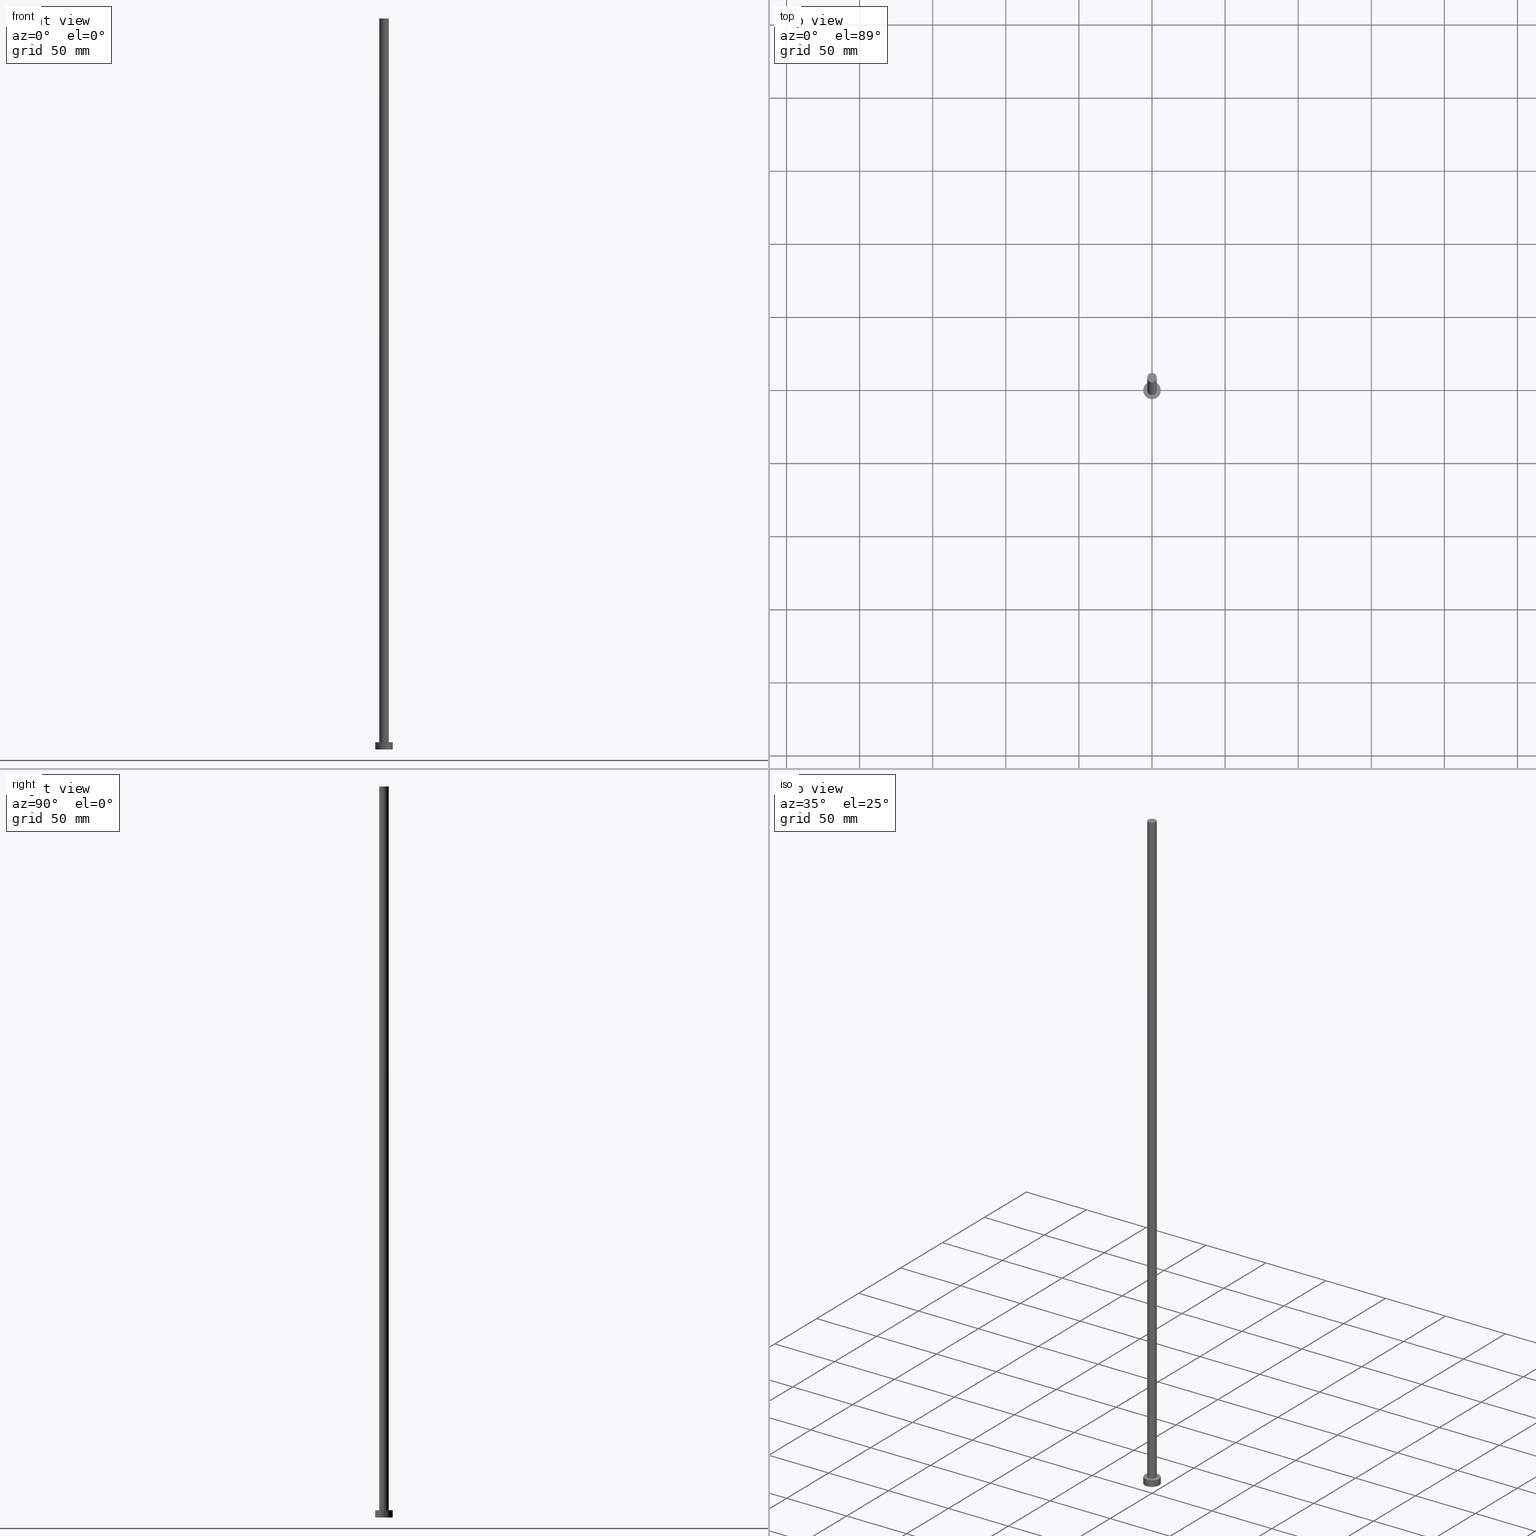
[diagram: canonical four-view strip — front | top / right | iso, engineering-drawing reading convention]
A machine part, canonical four-view strip (front | top / right | iso — engineering-drawing reading convention). The complete STEP part file that produces these views, byte-faithful:
ISO-10303-21;
HEADER;
FILE_DESCRIPTION (( 'STEP AP203' ),
    '1' );
FILE_NAME ('65e1.STEP',
    '2023-02-13T15:16:29',
    ( '' ),
    ( '' ),
    'SwSTEP 2.0',
    'SolidWorks 2019',
    '' );
FILE_SCHEMA (( 'CONFIG_CONTROL_DESIGN' ));
ENDSEC;

DATA;
#1 = EDGE_CURVE ( 'NONE', #97, #76, #206, .T. ) ;
#2 = AXIS2_PLACEMENT_3D ( 'NONE', #204, #13, #180 ) ;
#3 = COORDINATED_UNIVERSAL_TIME_OFFSET ( 1, 0, .AHEAD. ) ;
#4 = ORIENTED_EDGE ( 'NONE', *, *, #198, .T. ) ;
#5 = APPLICATION_CONTEXT ( 'configuration controlled 3d designs of mechanical parts and assemblies' ) ;
#6 = DATE_AND_TIME ( #173, #60 ) ;
#7 = ADVANCED_FACE ( 'NONE', ( #66 ), #220, .T. ) ;
#8 = APPROVAL_DATE_TIME ( #242, #215 ) ;
#9 = ORIENTED_EDGE ( 'NONE', *, *, #50, .F. ) ;
#10 = PERSON_AND_ORGANIZATION_ROLE ( 'design_supplier' ) ;
#11 = CARTESIAN_POINT ( 'NONE',  ( -6.000000000000000888, 0.000000000000000000, 0.000000000000000000 ) ) ;
#12 = DIRECTION ( 'NONE',  ( 0.000000000000000000, 0.000000000000000000, 1.000000000000000000 ) ) ;
#13 = DIRECTION ( 'NONE',  ( 0.000000000000000000, 0.000000000000000000, 1.000000000000000000 ) ) ;
#14 = DIRECTION ( 'NONE',  ( -0.000000000000000000, -0.000000000000000000, -1.000000000000000000 ) ) ;
#15 = AXIS2_PLACEMENT_3D ( 'NONE', #101, #47, #174 ) ;
#16 = MECHANICAL_CONTEXT ( 'NONE', #250, 'mechanical' ) ;
#17 = DATE_AND_TIME ( #146, #93 ) ;
#18 = CC_DESIGN_APPROVAL ( #166, ( #194 ) ) ;
#19 = ORIENTED_EDGE ( 'NONE', *, *, #198, .F. ) ;
#20 = PERSON ( 'NEUR�EN�', 'NEUR�EN�', 'NEUR�EN�', ('NEUR�EN�'), ('NEUR�EN�'), ('NEUR�EN�') ) ;
#21 = DIRECTION ( 'NONE',  ( 1.000000000000000000, 0.000000000000000000, 0.000000000000000000 ) ) ;
#22 = EDGE_LOOP ( 'NONE', ( #48, #176, #49, #62 ) ) ;
#23 = EDGE_LOOP ( 'NONE', ( #19, #239 ) ) ;
#24 = AXIS2_PLACEMENT_3D ( 'NONE', #94, #73, #167 ) ;
#25 = VECTOR ( 'NONE', #69, 1000.000000000000000 ) ;
#26 = CC_DESIGN_DATE_AND_TIME_ASSIGNMENT ( #6, #79, ( #194 ) ) ;
#27 = ORIENTED_EDGE ( 'NONE', *, *, #222, .T. ) ;
#28 = PRODUCT ( '65e1', '65e1', '', ( #16 ) ) ;
#29 = ORIENTED_EDGE ( 'NONE', *, *, #130, .T. ) ;
#30 = AXIS2_PLACEMENT_3D ( 'NONE', #164, #139, #205 ) ;
#31 = ADVANCED_FACE ( 'NONE', ( #219 ), #51, .T. ) ;
#32 = LOCAL_TIME ( 16, 16, 29.00000000000000000, #33 ) ;
#33 = COORDINATED_UNIVERSAL_TIME_OFFSET ( 1, 0, .AHEAD. ) ;
#34 = PERSON_AND_ORGANIZATION ( #20, #45 ) ;
#35 = EDGE_CURVE ( 'NONE', #217, #191, #235, .T. ) ;
#36 = DIRECTION ( 'NONE',  ( 0.000000000000000000, 0.000000000000000000, 1.000000000000000000 ) ) ;
#37 = CARTESIAN_POINT ( 'NONE',  ( -6.000000000000000888, 0.000000000000000000, 5.000000000000000000 ) ) ;
#38 = EDGE_CURVE ( 'NONE', #76, #63, #207, .T. ) ;
#39 = FACE_OUTER_BOUND ( 'NONE', #156, .T. ) ;
#40 = EDGE_LOOP ( 'NONE', ( #133, #81, #29, #147 ) ) ;
#41 = AXIS2_PLACEMENT_3D ( 'NONE', #44, #170, #145 ) ;
#42 = DIRECTION ( 'NONE',  ( 1.000000000000000000, 0.000000000000000000, 0.000000000000000000 ) ) ;
#43 = AXIS2_PLACEMENT_3D ( 'NONE', #182, #36, #105 ) ;
#44 = CARTESIAN_POINT ( 'NONE',  ( 0.000000000000000000, 0.000000000000000000, 0.000000000000000000 ) ) ;
#45 = ORGANIZATION ( 'NEUR�EN�', 'NEUR�EN�', '' ) ;
#46 = VECTOR ( 'NONE', #163, 1000.000000000000000 ) ;
#47 = DIRECTION ( 'NONE',  ( -0.000000000000000000, -0.000000000000000000, -1.000000000000000000 ) ) ;
#48 = ORIENTED_EDGE ( 'NONE', *, *, #35, .F. ) ;
#49 = ORIENTED_EDGE ( 'NONE', *, *, #50, .T. ) ;
#50 = EDGE_CURVE ( 'NONE', #118, #158, #179, .T. ) ;
#51 = CYLINDRICAL_SURFACE ( 'NONE', #15, 3.250000000000000444 ) ;
#52 = LINE ( 'NONE', #159, #25 ) ;
#53 = CALENDAR_DATE ( 2023, 13, 2 ) ;
#54 = CARTESIAN_POINT ( 'NONE',  ( 3.250000000000000444, 3.980102097228898231E-16, 5.000000000000000000 ) ) ;
#55 = CARTESIAN_POINT ( 'NONE',  ( -3.250000000000000444, 0.000000000000000000, 500.0000000000000000 ) ) ;
#56 = DATE_TIME_ROLE ( 'classification_date' ) ;
#57 = SHAPE_DEFINITION_REPRESENTATION ( #162, #251 ) ;
#58 = CARTESIAN_POINT ( 'NONE',  ( 3.250000000000000444, 3.980102097228898231E-16, 500.0000000000000000 ) ) ;
#59 = DIRECTION ( 'NONE',  ( 1.000000000000000000, 0.000000000000000000, -0.000000000000000000 ) ) ;
#60 = LOCAL_TIME ( 16, 16, 29.00000000000000000, #3 ) ;
#61 = DIRECTION ( 'NONE',  ( 0.000000000000000000, 0.000000000000000000, 1.000000000000000000 ) ) ;
#62 = ORIENTED_EDGE ( 'NONE', *, *, #151, .F. ) ;
#63 = VERTEX_POINT ( 'NONE', #54 ) ;
#64 = PERSON_AND_ORGANIZATION ( #20, #45 ) ;
#65 = CLOSED_SHELL ( 'NONE', ( #7, #144, #195, #124, #244, #31, #157 ) ) ;
#66 = FACE_OUTER_BOUND ( 'NONE', #40, .T. ) ;
#67 = DIRECTION ( 'NONE',  ( 1.000000000000000000, 0.000000000000000000, 0.000000000000000000 ) ) ;
#68 = PERSON_AND_ORGANIZATION_ROLE ( 'creator' ) ;
#69 = DIRECTION ( 'NONE',  ( -0.000000000000000000, -0.000000000000000000, -1.000000000000000000 ) ) ;
#70 = EDGE_CURVE ( 'NONE', #191, #217, #74, .T. ) ;
#71 = APPROVAL_PERSON_ORGANIZATION ( #208, #166, #187 ) ;
#72 = CARTESIAN_POINT ( 'NONE',  ( 0.000000000000000000, 0.000000000000000000, 5.000000000000000000 ) ) ;
#73 = DIRECTION ( 'NONE',  ( 0.000000000000000000, 0.000000000000000000, 1.000000000000000000 ) ) ;
#74 = CIRCLE ( 'NONE', #77, 6.000000000000000888 ) ;
#75 = CARTESIAN_POINT ( 'NONE',  ( -3.250000000000000444, 0.000000000000000000, 500.0000000000000000 ) ) ;
#76 = VERTEX_POINT ( 'NONE', #58 ) ;
#77 = AXIS2_PLACEMENT_3D ( 'NONE', #247, #230, #226 ) ;
#78 = DIRECTION ( 'NONE',  ( -0.000000000000000000, -0.000000000000000000, -1.000000000000000000 ) ) ;
#79 = DATE_TIME_ROLE ( 'creation_date' ) ;
#80 = EDGE_LOOP ( 'NONE', ( #113, #9 ) ) ;
#81 = ORIENTED_EDGE ( 'NONE', *, *, #38, .T. ) ;
#82 = AXIS2_PLACEMENT_3D ( 'NONE', #193, #61, #59 ) ;
#83 = PERSON_AND_ORGANIZATION ( #20, #45 ) ;
#84 = FACE_OUTER_BOUND ( 'NONE', #243, .T. ) ;
#85 = SECURITY_CLASSIFICATION_LEVEL ( 'unclassified' ) ;
#86 = AXIS2_PLACEMENT_3D ( 'NONE', #196, #78, #153 ) ;
#87 = CARTESIAN_POINT ( 'NONE',  ( 0.000000000000000000, 0.000000000000000000, 5.000000000000000000 ) ) ;
#88 = FACE_OUTER_BOUND ( 'NONE', #114, .T. ) ;
#89 = CC_DESIGN_APPROVAL ( #92, ( #234 ) ) ;
#90 = DIRECTION ( 'NONE',  ( 0.000000000000000000, 0.000000000000000000, 1.000000000000000000 ) ) ;
#91 = APPROVAL_DATE_TIME ( #17, #166 ) ;
#92 = APPROVAL ( #202, 'NEUR�EN�' ) ;
#93 = LOCAL_TIME ( 16, 16, 29.00000000000000000, #209 ) ;
#94 = CARTESIAN_POINT ( 'NONE',  ( 0.000000000000000000, 0.000000000000000000, 0.000000000000000000 ) ) ;
#95 = AXIS2_PLACEMENT_3D ( 'NONE', #72, #137, #126 ) ;
#96 = ORIENTED_EDGE ( 'NONE', *, *, #110, .F. ) ;
#97 = VERTEX_POINT ( 'NONE', #55 ) ;
#98 = UNCERTAINTY_MEASURE_WITH_UNIT (LENGTH_MEASURE( 1.000000000000000082E-05 ), #108, 'distance_accuracy_value', 'NONE');
#99 = COORDINATED_UNIVERSAL_TIME_OFFSET ( 1, 0, .AHEAD. ) ;
#100 = ORIENTED_EDGE ( 'NONE', *, *, #237, .T. ) ;
#101 = CARTESIAN_POINT ( 'NONE',  ( 0.000000000000000000, 0.000000000000000000, 500.0000000000000000 ) ) ;
#102 = CIRCLE ( 'NONE', #165, 3.250000000000000444 ) ;
#103 = FACE_BOUND ( 'NONE', #23, .T. ) ;
#104 = CALENDAR_DATE ( 2023, 13, 2 ) ;
#105 = DIRECTION ( 'NONE',  ( 1.000000000000000000, 0.000000000000000000, 0.000000000000000000 ) ) ;
#106 = APPROVAL_ROLE ( '' ) ;
#107 = DIRECTION ( 'NONE',  ( -0.000000000000000000, -0.000000000000000000, -1.000000000000000000 ) ) ;
#108 =( LENGTH_UNIT ( ) NAMED_UNIT ( * ) SI_UNIT ( .MILLI., .METRE. ) );
#109 = ORIENTED_EDGE ( 'NONE', *, *, #70, .F. ) ;
#110 = EDGE_CURVE ( 'NONE', #217, #118, #125, .T. ) ;
#111 = CC_DESIGN_DATE_AND_TIME_ASSIGNMENT ( #120, #56, ( #234 ) ) ;
#112 =( NAMED_UNIT ( * ) PLANE_ANGLE_UNIT ( ) SI_UNIT ( $, .RADIAN. ) );
#113 = ORIENTED_EDGE ( 'NONE', *, *, #222, .F. ) ;
#114 = EDGE_LOOP ( 'NONE', ( #210, #100 ) ) ;
#115 = CC_DESIGN_SECURITY_CLASSIFICATION ( #234, ( #177 ) ) ;
#116 = ORIENTED_EDGE ( 'NONE', *, *, #35, .T. ) ;
#117 = APPROVAL_ROLE ( '' ) ;
#118 = VERTEX_POINT ( 'NONE', #123 ) ;
#119 = CARTESIAN_POINT ( 'NONE',  ( 0.000000000000000000, 0.000000000000000000, 5.000000000000000000 ) ) ;
#120 = DATE_AND_TIME ( #53, #32 ) ;
#121 = CYLINDRICAL_SURFACE ( 'NONE', #95, 6.000000000000000888 ) ;
#122 = DATE_AND_TIME ( #104, #200 ) ;
#123 = CARTESIAN_POINT ( 'NONE',  ( 6.000000000000000888, 7.347880794884120722E-16, 0.000000000000000000 ) ) ;
#124 = ADVANCED_FACE ( 'NONE', ( #103, #39 ), #142, .T. ) ;
#125 = LINE ( 'NONE', #253, #252 ) ;
#126 = DIRECTION ( 'NONE',  ( -1.000000000000000000, 0.000000000000000000, 0.000000000000000000 ) ) ;
#127 = PERSON_AND_ORGANIZATION ( #20, #45 ) ;
#128 = CC_DESIGN_APPROVAL ( #215, ( #177 ) ) ;
#129 = APPLICATION_PROTOCOL_DEFINITION ( 'international standard', 'config_control_design', 1994, #5 ) ;
#130 = EDGE_CURVE ( 'NONE', #63, #199, #140, .T. ) ;
#131 = APPROVAL_PERSON_ORGANIZATION ( #34, #92, #106 ) ;
#132 = APPROVAL_PERSON_ORGANIZATION ( #64, #215, #117 ) ;
#133 = ORIENTED_EDGE ( 'NONE', *, *, #237, .F. ) ;
#134 = DIRECTION ( 'NONE',  ( 0.000000000000000000, 0.000000000000000000, 1.000000000000000000 ) ) ;
#135 = CC_DESIGN_PERSON_AND_ORGANIZATION_ASSIGNMENT ( #228, #68, ( #177 ) ) ;
#136 = APPROVAL_STATUS ( 'not_yet_approved' ) ;
#137 = DIRECTION ( 'NONE',  ( -0.000000000000000000, -0.000000000000000000, -1.000000000000000000 ) ) ;
#138 = PERSON_AND_ORGANIZATION ( #20, #45 ) ;
#139 = DIRECTION ( 'NONE',  ( 0.000000000000000000, 0.000000000000000000, 1.000000000000000000 ) ) ;
#140 = CIRCLE ( 'NONE', #43, 3.250000000000000444 ) ;
#141 = DIRECTION ( 'NONE',  ( 1.000000000000000000, 0.000000000000000000, 0.000000000000000000 ) ) ;
#142 = PLANE ( 'NONE',  #2 ) ;
#143 = CARTESIAN_POINT ( 'NONE',  ( 0.000000000000000000, 0.000000000000000000, 0.000000000000000000 ) ) ;
#144 = ADVANCED_FACE ( 'NONE', ( #161 ), #183, .T. ) ;
#145 = DIRECTION ( 'NONE',  ( 1.000000000000000000, 0.000000000000000000, 0.000000000000000000 ) ) ;
#146 = CALENDAR_DATE ( 2023, 13, 2 ) ;
#147 = ORIENTED_EDGE ( 'NONE', *, *, #211, .F. ) ;
#148 = PERSON_AND_ORGANIZATION_ROLE ( 'design_owner' ) ;
#149 = FACE_OUTER_BOUND ( 'NONE', #80, .T. ) ;
#150 =( GEOMETRIC_REPRESENTATION_CONTEXT ( 3 ) GLOBAL_UNCERTAINTY_ASSIGNED_CONTEXT ( ( #98 ) ) GLOBAL_UNIT_ASSIGNED_CONTEXT ( ( #108, #112, #213 ) ) REPRESENTATION_CONTEXT ( 'NONE', 'WORKASPACE' ) );
#151 = EDGE_CURVE ( 'NONE', #191, #158, #52, .T. ) ;
#152 = ORIENTED_EDGE ( 'NONE', *, *, #38, .F. ) ;
#153 = DIRECTION ( 'NONE',  ( -1.000000000000000000, 0.000000000000000000, 0.000000000000000000 ) ) ;
#154 = PRODUCT_RELATED_PRODUCT_CATEGORY ( 'detail', '', ( #28 ) ) ;
#155 = ORIENTED_EDGE ( 'NONE', *, *, #1, .F. ) ;
#156 = EDGE_LOOP ( 'NONE', ( #240, #116 ) ) ;
#157 = ADVANCED_FACE ( 'NONE', ( #88 ), #221, .T. ) ;
#158 = VERTEX_POINT ( 'NONE', #11 ) ;
#159 = CARTESIAN_POINT ( 'NONE',  ( -6.000000000000000888, 0.000000000000000000, 5.000000000000000000 ) ) ;
#160 = AXIS2_PLACEMENT_3D ( 'NONE', #87, #254, #227 ) ;
#161 = FACE_OUTER_BOUND ( 'NONE', #22, .T. ) ;
#162 = PRODUCT_DEFINITION_SHAPE ( 'NONE', 'NONE',  #194 ) ;
#163 = DIRECTION ( 'NONE',  ( -0.000000000000000000, -0.000000000000000000, -1.000000000000000000 ) ) ;
#164 = CARTESIAN_POINT ( 'NONE',  ( 0.000000000000000000, 0.000000000000000000, 500.0000000000000000 ) ) ;
#165 = AXIS2_PLACEMENT_3D ( 'NONE', #168, #90, #42 ) ;
#166 = APPROVAL ( #255, 'NEUR�EN�' ) ;
#167 = DIRECTION ( 'NONE',  ( 1.000000000000000000, 0.000000000000000000, 0.000000000000000000 ) ) ;
#168 = CARTESIAN_POINT ( 'NONE',  ( 0.000000000000000000, 0.000000000000000000, 500.0000000000000000 ) ) ;
#169 = CARTESIAN_POINT ( 'NONE',  ( 6.000000000000000888, 7.347880794884120722E-16, 5.000000000000000000 ) ) ;
#170 = DIRECTION ( 'NONE',  ( 0.000000000000000000, 0.000000000000000000, 1.000000000000000000 ) ) ;
#171 = CC_DESIGN_PERSON_AND_ORGANIZATION_ASSIGNMENT ( #83, #181, ( #234 ) ) ;
#172 = CARTESIAN_POINT ( 'NONE',  ( 0.000000000000000000, 0.000000000000000000, 500.0000000000000000 ) ) ;
#173 = CALENDAR_DATE ( 2023, 13, 2 ) ;
#174 = DIRECTION ( 'NONE',  ( -1.000000000000000000, 0.000000000000000000, 0.000000000000000000 ) ) ;
#175 = CALENDAR_DATE ( 2023, 13, 2 ) ;
#176 = ORIENTED_EDGE ( 'NONE', *, *, #110, .T. ) ;
#177 = PRODUCT_DEFINITION_FORMATION_WITH_SPECIFIED_SOURCE ( 'LIBOVOLN�', '', #28, .NOT_KNOWN. ) ;
#178 = ORIENTED_EDGE ( 'NONE', *, *, #211, .T. ) ;
#179 = CIRCLE ( 'NONE', #212, 6.000000000000000888 ) ;
#180 = DIRECTION ( 'NONE',  ( 1.000000000000000000, 0.000000000000000000, -0.000000000000000000 ) ) ;
#181 = PERSON_AND_ORGANIZATION_ROLE ( 'classification_officer' ) ;
#182 = CARTESIAN_POINT ( 'NONE',  ( 0.000000000000000000, 0.000000000000000000, 5.000000000000000000 ) ) ;
#183 = CYLINDRICAL_SURFACE ( 'NONE', #160, 6.000000000000000888 ) ;
#184 = CC_DESIGN_PERSON_AND_ORGANIZATION_ASSIGNMENT ( #127, #148, ( #28 ) ) ;
#185 = APPROVAL_DATE_TIME ( #122, #92 ) ;
#186 = DIRECTION ( 'NONE',  ( 1.000000000000000000, 0.000000000000000000, 0.000000000000000000 ) ) ;
#187 = APPROVAL_ROLE ( '' ) ;
#188 = VECTOR ( 'NONE', #14, 1000.000000000000000 ) ;
#189 = AXIS2_PLACEMENT_3D ( 'NONE', #216, #12, #186 ) ;
#190 = PLANE ( 'NONE',  #82 ) ;
#191 = VERTEX_POINT ( 'NONE', #37 ) ;
#192 = LINE ( 'NONE', #75, #188 ) ;
#193 = CARTESIAN_POINT ( 'NONE',  ( 0.000000000000000000, 0.000000000000000000, 0.000000000000000000 ) ) ;
#194 = PRODUCT_DEFINITION ( 'NEZN�M�', '', #177, #233 ) ;
#195 = ADVANCED_FACE ( 'NONE', ( #84 ), #121, .T. ) ;
#196 = CARTESIAN_POINT ( 'NONE',  ( 0.000000000000000000, 0.000000000000000000, 500.0000000000000000 ) ) ;
#197 = EDGE_LOOP ( 'NONE', ( #152, #155, #178, #4 ) ) ;
#198 = EDGE_CURVE ( 'NONE', #199, #63, #229, .T. ) ;
#199 = VERTEX_POINT ( 'NONE', #231 ) ;
#200 = LOCAL_TIME ( 16, 16, 29.00000000000000000, #225 ) ;
#201 = AXIS2_PLACEMENT_3D ( 'NONE', #172, #134, #67 ) ;
#202 = APPROVAL_STATUS ( 'not_yet_approved' ) ;
#203 = DIRECTION ( 'NONE',  ( 0.000000000000000000, 0.000000000000000000, 1.000000000000000000 ) ) ;
#204 = CARTESIAN_POINT ( 'NONE',  ( 0.000000000000000000, 0.000000000000000000, 5.000000000000000000 ) ) ;
#205 = DIRECTION ( 'NONE',  ( 1.000000000000000000, 0.000000000000000000, -0.000000000000000000 ) ) ;
#206 = CIRCLE ( 'NONE', #201, 3.250000000000000444 ) ;
#207 = LINE ( 'NONE', #223, #46 ) ;
#208 = PERSON_AND_ORGANIZATION ( #20, #45 ) ;
#209 = COORDINATED_UNIVERSAL_TIME_OFFSET ( 1, 0, .AHEAD. ) ;
#210 = ORIENTED_EDGE ( 'NONE', *, *, #1, .T. ) ;
#211 = EDGE_CURVE ( 'NONE', #97, #199, #192, .T. ) ;
#212 = AXIS2_PLACEMENT_3D ( 'NONE', #143, #249, #141 ) ;
#213 =( NAMED_UNIT ( * ) SI_UNIT ( $, .STERADIAN. ) SOLID_ANGLE_UNIT ( ) );
#214 = APPLICATION_PROTOCOL_DEFINITION ( 'international standard', 'config_control_design', 1994, #250 ) ;
#215 = APPROVAL ( #136, 'NEUR�EN�' ) ;
#216 = CARTESIAN_POINT ( 'NONE',  ( 0.000000000000000000, 0.000000000000000000, 5.000000000000000000 ) ) ;
#217 = VERTEX_POINT ( 'NONE', #169 ) ;
#218 = PERSON_AND_ORGANIZATION_ROLE ( 'creator' ) ;
#219 = FACE_OUTER_BOUND ( 'NONE', #197, .T. ) ;
#220 = CYLINDRICAL_SURFACE ( 'NONE', #86, 3.250000000000000444 ) ;
#221 = PLANE ( 'NONE',  #30 ) ;
#222 = EDGE_CURVE ( 'NONE', #158, #118, #238, .T. ) ;
#223 = CARTESIAN_POINT ( 'NONE',  ( 3.250000000000000444, 3.980102097228898231E-16, 500.0000000000000000 ) ) ;
#224 = CC_DESIGN_PERSON_AND_ORGANIZATION_ASSIGNMENT ( #236, #218, ( #194 ) ) ;
#225 = COORDINATED_UNIVERSAL_TIME_OFFSET ( 1, 0, .AHEAD. ) ;
#226 = DIRECTION ( 'NONE',  ( 1.000000000000000000, 0.000000000000000000, 0.000000000000000000 ) ) ;
#227 = DIRECTION ( 'NONE',  ( -1.000000000000000000, 0.000000000000000000, 0.000000000000000000 ) ) ;
#228 = PERSON_AND_ORGANIZATION ( #20, #45 ) ;
#229 = CIRCLE ( 'NONE', #241, 3.250000000000000444 ) ;
#230 = DIRECTION ( 'NONE',  ( 0.000000000000000000, 0.000000000000000000, 1.000000000000000000 ) ) ;
#231 = CARTESIAN_POINT ( 'NONE',  ( -3.250000000000000444, 0.000000000000000000, 5.000000000000000000 ) ) ;
#232 = MANIFOLD_SOLID_BREP ( 'P�idat vysunut�m3', #65 ) ;
#233 = DESIGN_CONTEXT ( 'detailed design', #5, 'design' ) ;
#234 = SECURITY_CLASSIFICATION ( '', '', #85 ) ;
#235 = CIRCLE ( 'NONE', #189, 6.000000000000000888 ) ;
#236 = PERSON_AND_ORGANIZATION ( #20, #45 ) ;
#237 = EDGE_CURVE ( 'NONE', #76, #97, #102, .T. ) ;
#238 = CIRCLE ( 'NONE', #24, 6.000000000000000888 ) ;
#239 = ORIENTED_EDGE ( 'NONE', *, *, #130, .F. ) ;
#240 = ORIENTED_EDGE ( 'NONE', *, *, #70, .T. ) ;
#241 = AXIS2_PLACEMENT_3D ( 'NONE', #119, #203, #21 ) ;
#242 = DATE_AND_TIME ( #175, #248 ) ;
#243 = EDGE_LOOP ( 'NONE', ( #96, #109, #245, #27 ) ) ;
#244 = ADVANCED_FACE ( 'NONE', ( #149 ), #190, .F. ) ;
#245 = ORIENTED_EDGE ( 'NONE', *, *, #151, .T. ) ;
#246 = CC_DESIGN_PERSON_AND_ORGANIZATION_ASSIGNMENT ( #138, #10, ( #177 ) ) ;
#247 = CARTESIAN_POINT ( 'NONE',  ( 0.000000000000000000, 0.000000000000000000, 5.000000000000000000 ) ) ;
#248 = LOCAL_TIME ( 16, 16, 29.00000000000000000, #99 ) ;
#249 = DIRECTION ( 'NONE',  ( 0.000000000000000000, 0.000000000000000000, 1.000000000000000000 ) ) ;
#250 = APPLICATION_CONTEXT ( 'configuration controlled 3d designs of mechanical parts and assemblies' ) ;
#251 = ADVANCED_BREP_SHAPE_REPRESENTATION ( '65e1', ( #232, #41 ), #150 ) ;
#252 = VECTOR ( 'NONE', #107, 1000.000000000000000 ) ;
#253 = CARTESIAN_POINT ( 'NONE',  ( 6.000000000000000888, 7.347880794884120722E-16, 5.000000000000000000 ) ) ;
#254 = DIRECTION ( 'NONE',  ( -0.000000000000000000, -0.000000000000000000, -1.000000000000000000 ) ) ;
#255 = APPROVAL_STATUS ( 'not_yet_approved' ) ;
ENDSEC;
END-ISO-10303-21;
